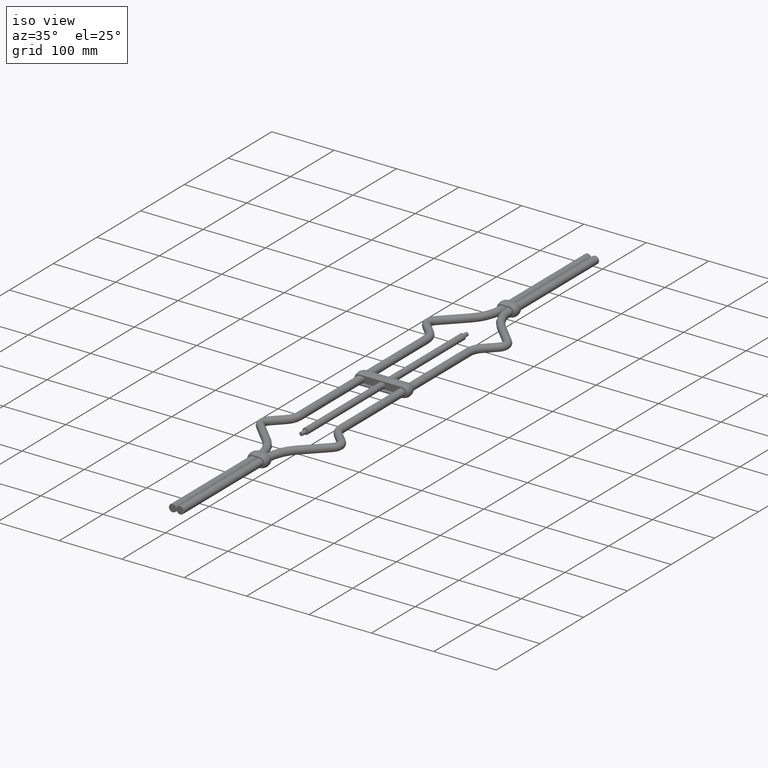
[diagram: clean part render]
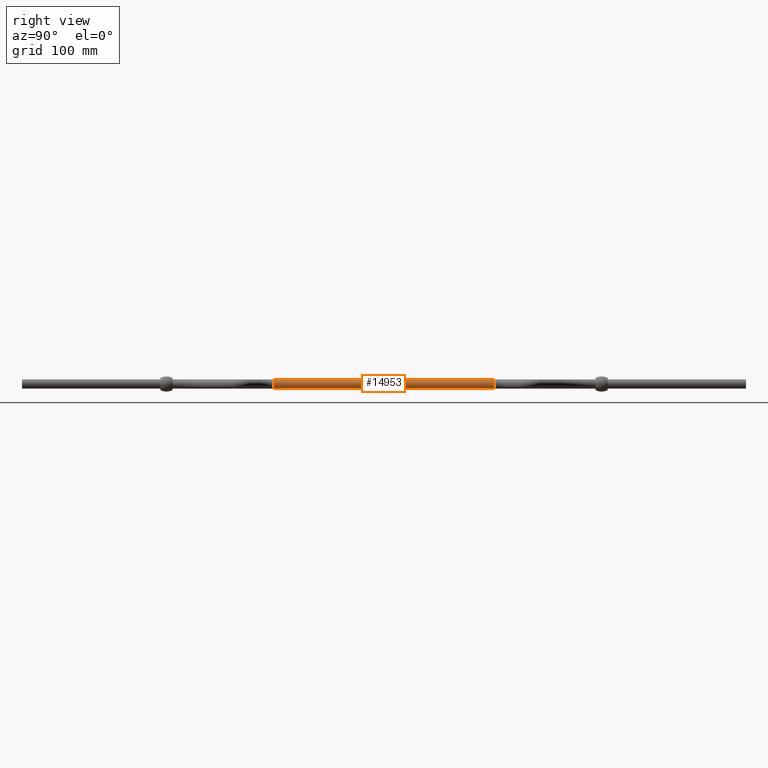
[diagram: tour spotlight — one face highlighted and labeled with its STEP entity id]
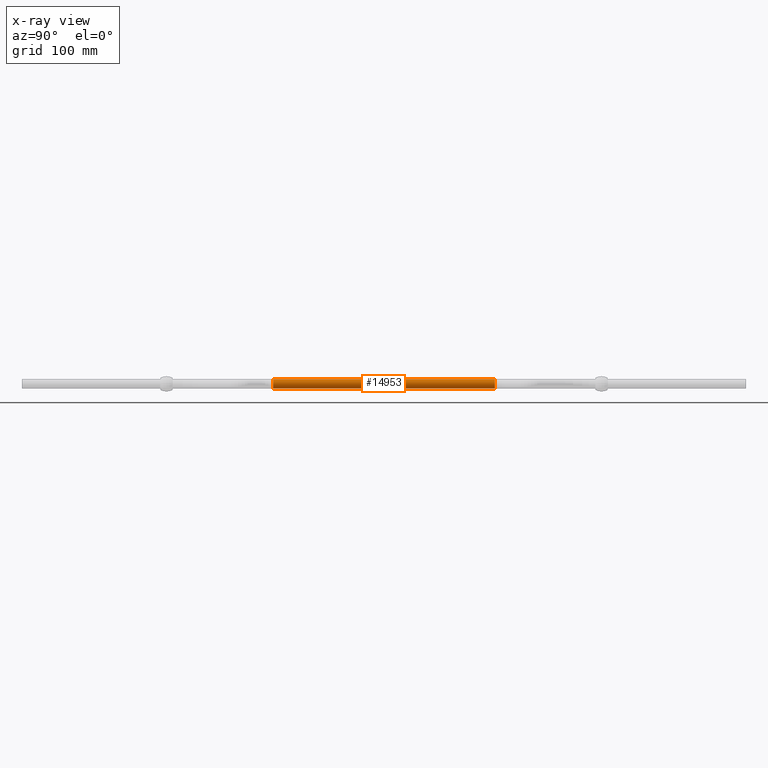
[diagram: x-ray of the same camera — body ghosted, this tour face saturated]
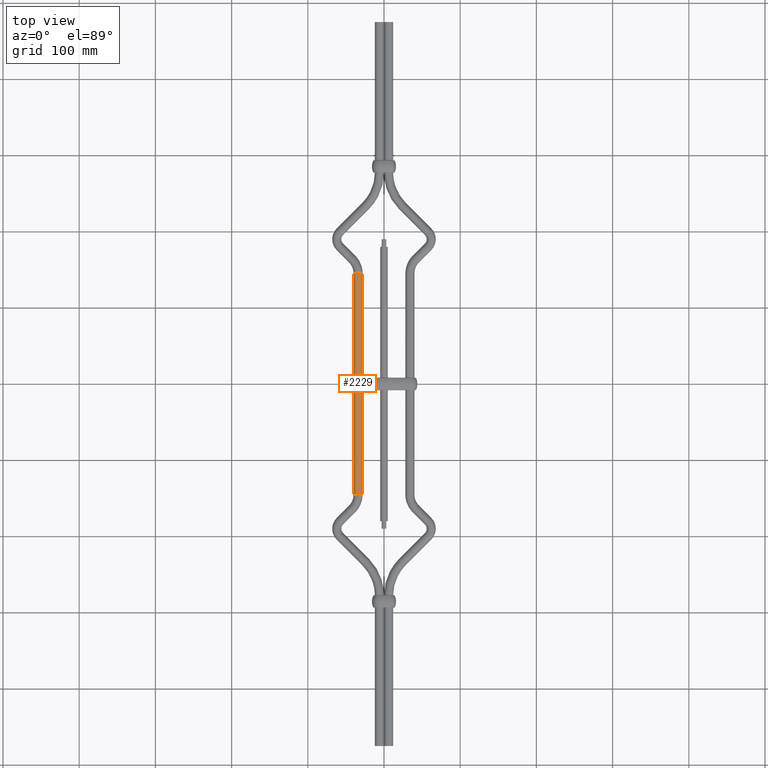
[diagram: tour spotlight — one face highlighted and labeled with its STEP entity id]
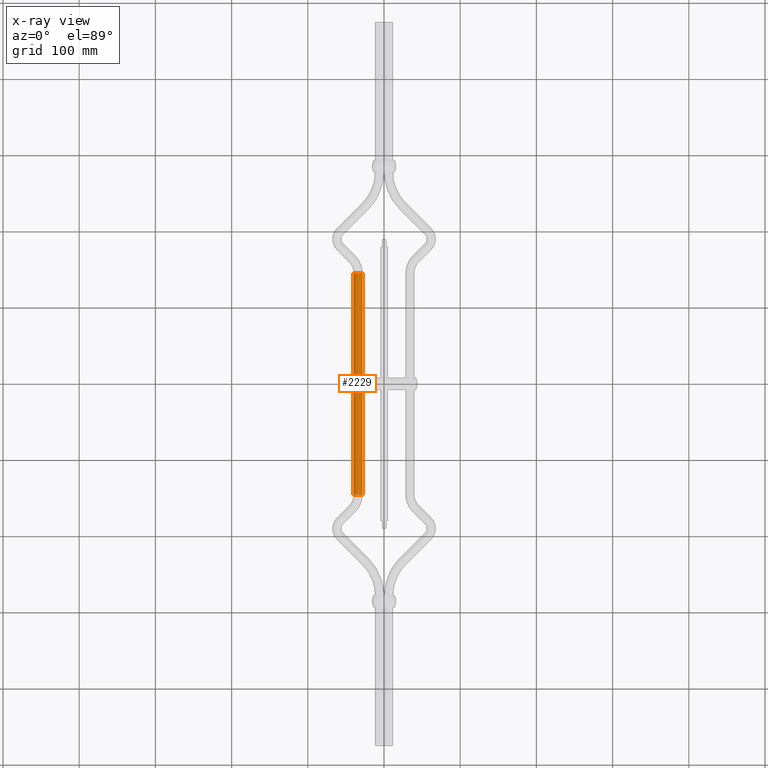
[diagram: x-ray of the same camera — body ghosted, this tour face saturated]
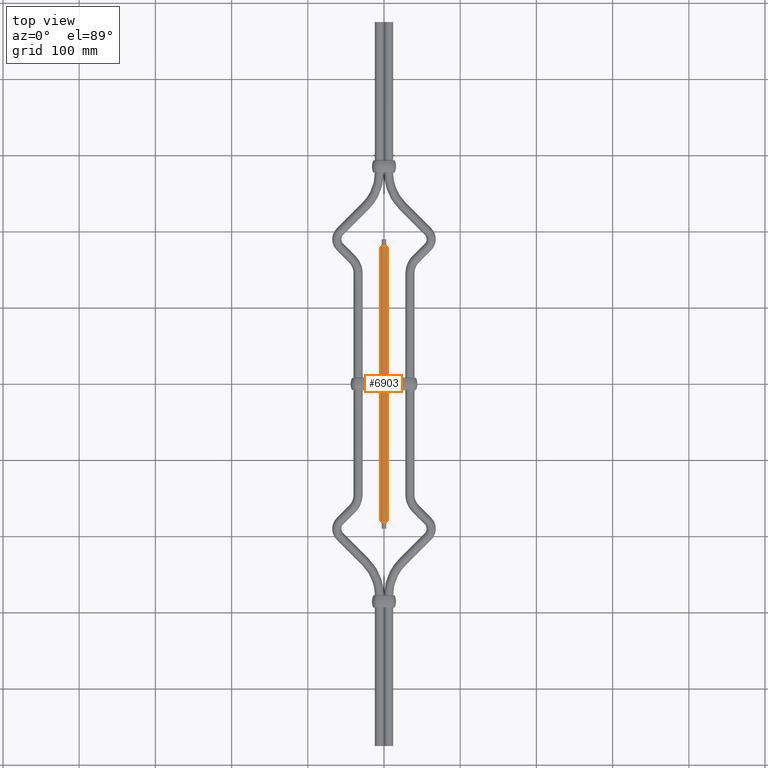
[diagram: tour spotlight — one face highlighted and labeled with its STEP entity id]
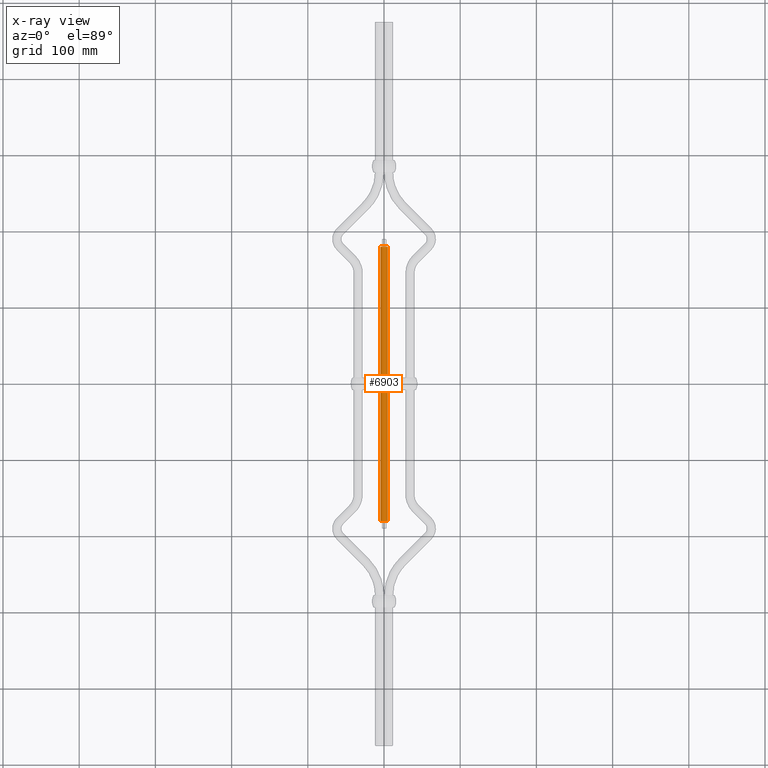
[diagram: x-ray of the same camera — body ghosted, this tour face saturated]
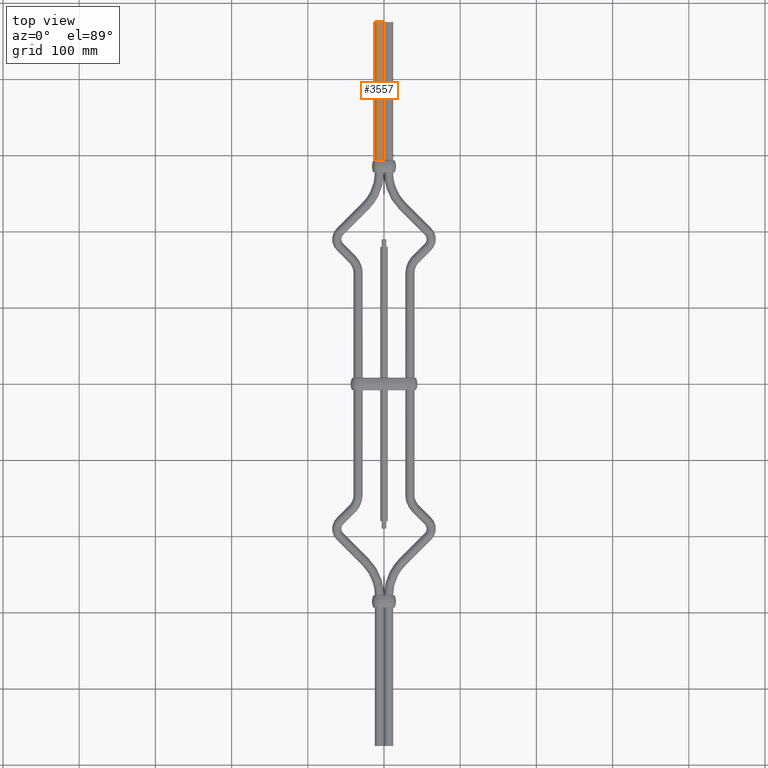
[diagram: tour spotlight — one face highlighted and labeled with its STEP entity id]
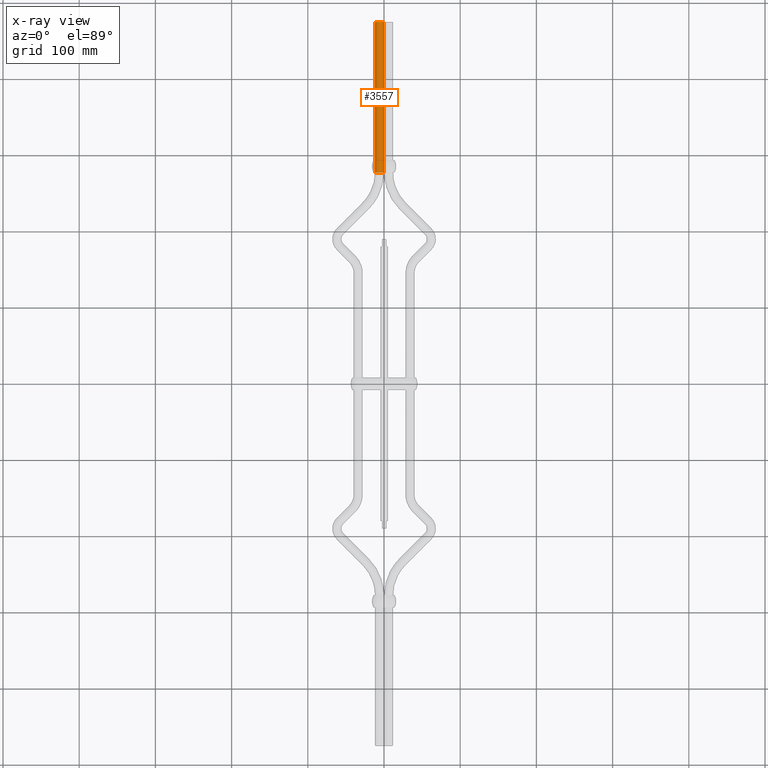
[diagram: x-ray of the same camera — body ghosted, this tour face saturated]
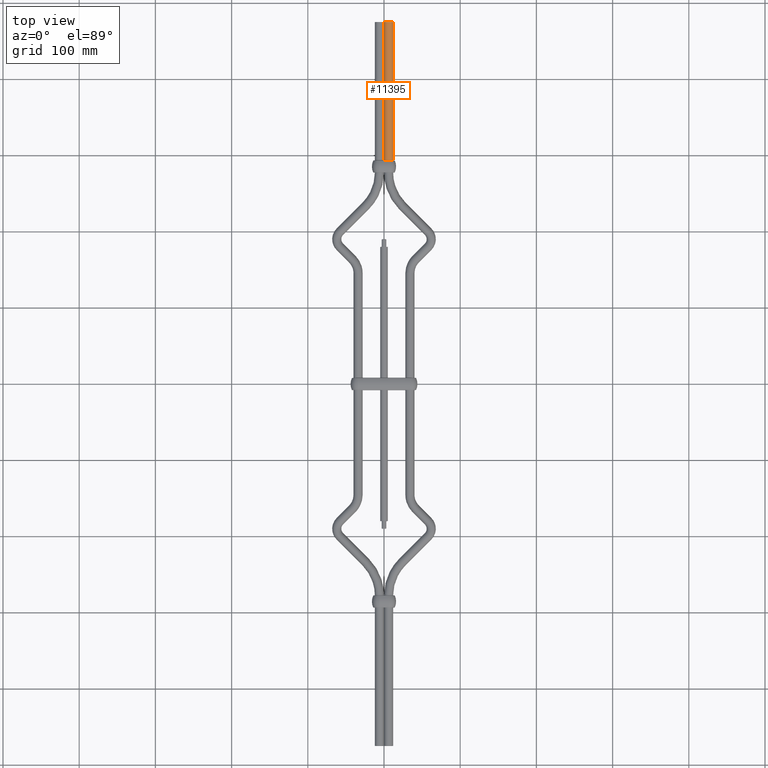
[diagram: tour spotlight — one face highlighted and labeled with its STEP entity id]
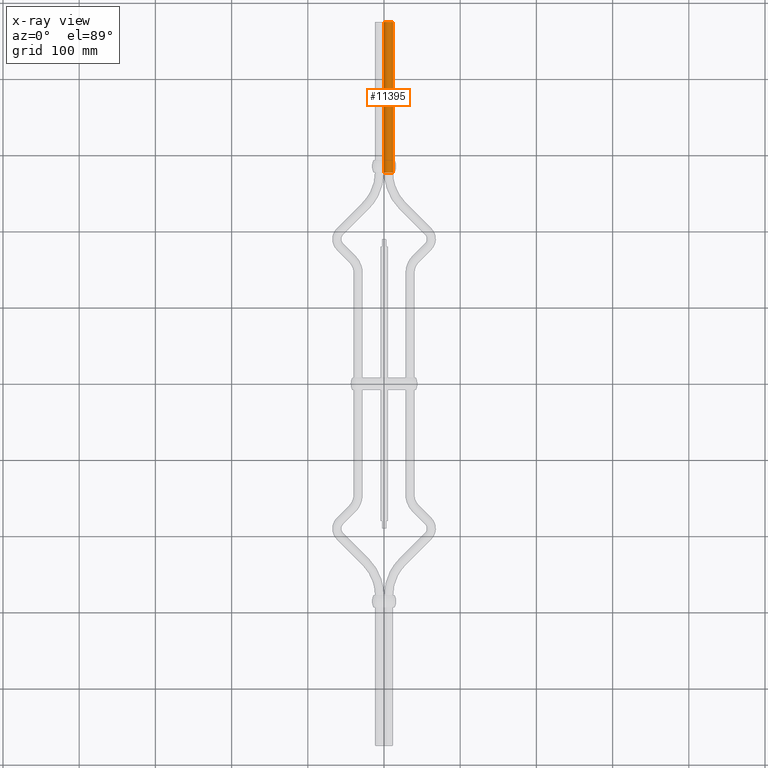
[diagram: x-ray of the same camera — body ghosted, this tour face saturated]
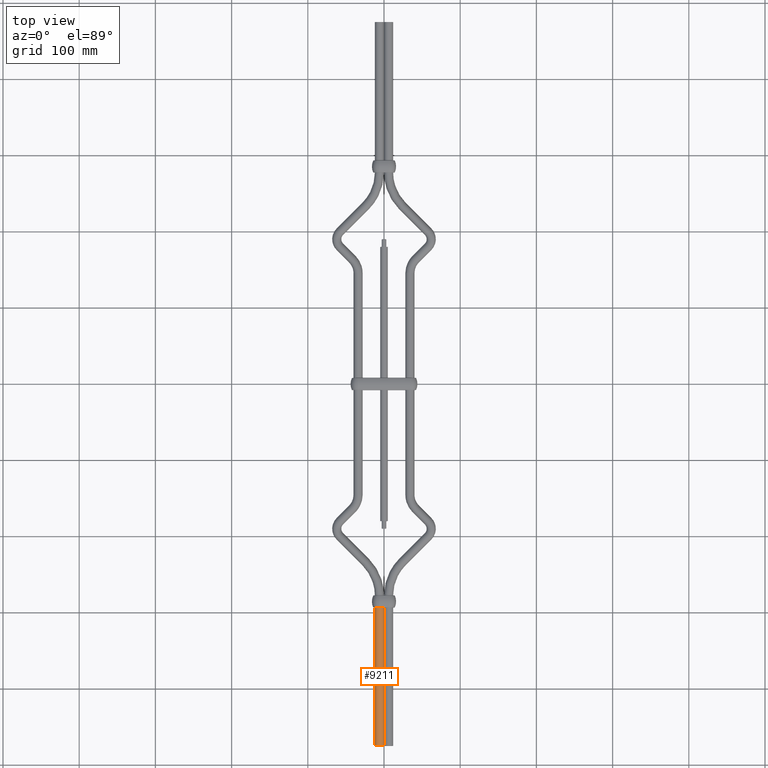
[diagram: tour spotlight — one face highlighted and labeled with its STEP entity id]
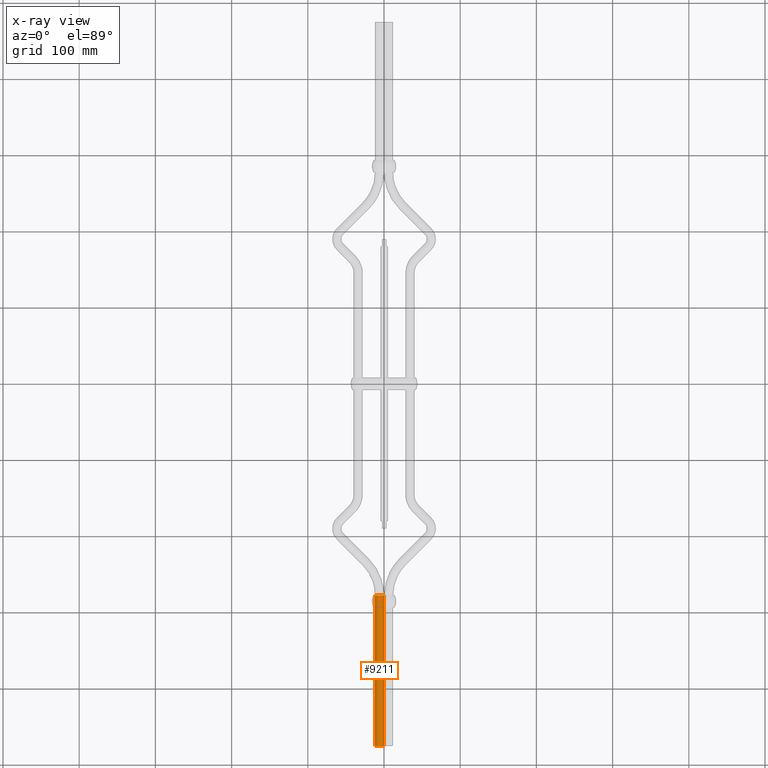
[diagram: x-ray of the same camera — body ghosted, this tour face saturated]
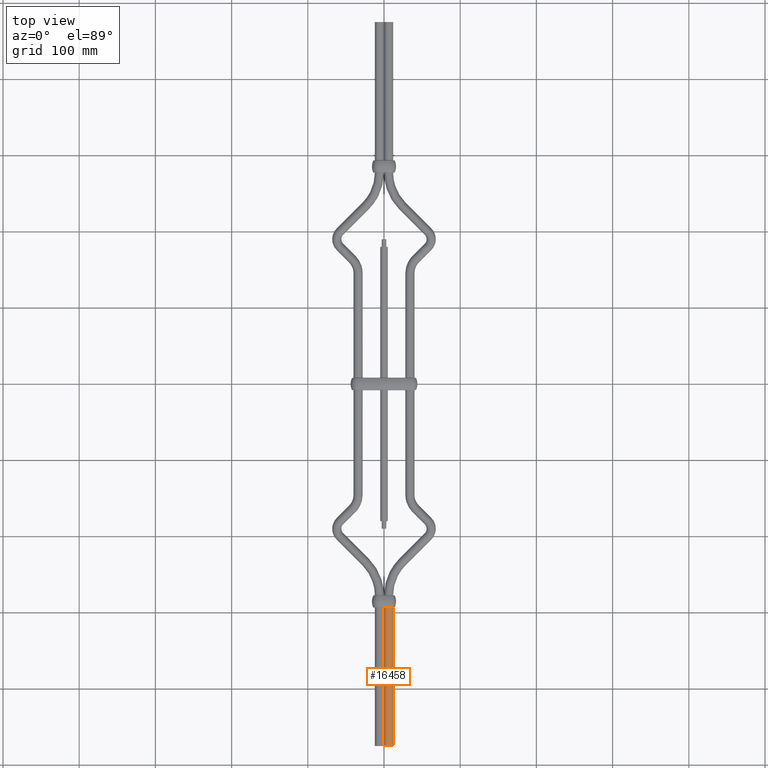
[diagram: tour spotlight — one face highlighted and labeled with its STEP entity id]
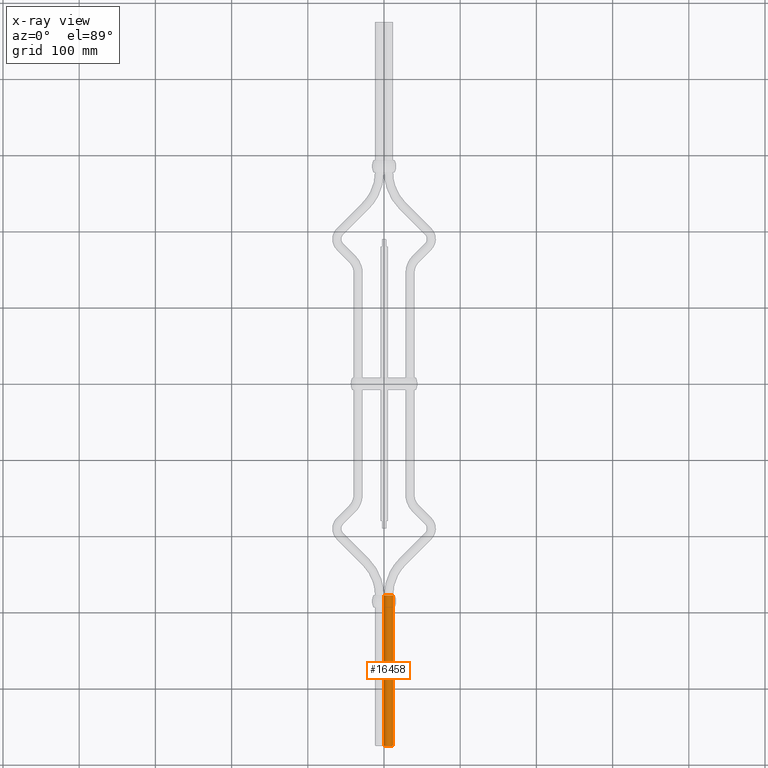
[diagram: x-ray of the same camera — body ghosted, this tour face saturated]
A machine part: a face-by-face anatomy tour. The part has 387 B-rep faces; the first image is the clean iso view, then the 7 largest visible faces are spotlighted one at a time (largest first), each with its STEP entity span.

Face 1 — right view, entity #14953. An x-ray twin of the same camera follows (body ghosted, this face saturated) — the face is partly hidden behind the body. In plain terms, the highlighted cylindrical surface (bore or boss wall) has radius 6 mm, axis along (0, 1, 0).
Definition (entity closure, byte-faithful):
#597 = VERTEX_POINT ( 'NONE', #9093 ) ;
#1064 = VERTEX_POINT ( 'NONE', #14320 ) ;
#1404 = AXIS2_PLACEMENT_3D ( 'NONE', #8619, #7284, #13607 ) ;
#1443 = CIRCLE ( 'NONE', #9463, 5.999999999999987566 ) ;
#2043 = VECTOR ( 'NONE', #15611, 1000.000000000000000 ) ;
#2161 = AXIS2_PLACEMENT_3D ( 'NONE', #7529, #6183, #4863 ) ;
#2219 = EDGE_LOOP ( 'NONE', ( #4838, #2811, #15328, #15410 ) ) ;
#2248 = CYLINDRICAL_SURFACE ( 'NONE', #1404, 5.999999999999987566 ) ;
#2266 = CARTESIAN_POINT ( 'NONE',  ( 34.00000000000000000, -5.000000000000000000, 0.000000000000000000 ) ) ;
#2346 = CARTESIAN_POINT ( 'NONE',  ( 30.68337520964461262, 1.582443574048710790E-16, -4.999999999999992895 ) ) ;
#2482 = CIRCLE ( 'NONE', #9016, 5.999999999999987566 ) ;
#2567 = LINE ( 'NONE', #2346, #14270 ) ;
#2641 = VERTEX_POINT ( 'NONE', #15475 ) ;
#2811 = ORIENTED_EDGE ( 'NONE', *, *, #15154, .F. ) ;
#3826 = FACE_OUTER_BOUND ( 'NONE', #9884, .T. ) ;
#4451 = CARTESIAN_POINT ( 'NONE',  ( 34.00000000000000000, 5.000000000000000000, 0.000000000000000000 ) ) ;
#4838 = ORIENTED_EDGE ( 'NONE', *, *, #5020, .F. ) ;
#4863 = DIRECTION ( 'NONE',  ( 0.000000000000000000, 0.000000000000000000, 1.000000000000000000 ) ) ;
#5020 = EDGE_CURVE ( 'NONE', #11113, #6650, #2482, .T. ) ;
#5027 = FACE_BOUND ( 'NONE', #2219, .T. ) ;
#5208 = FACE_OUTER_BOUND ( 'NONE', #6741, .T. ) ;
#5481 = ORIENTED_EDGE ( 'NONE', *, *, #13057, .F. ) ;
#5922 = EDGE_CURVE ( 'NONE', #597, #597, #8024, .T. ) ;
#6145 = EDGE_CURVE ( 'NONE', #1064, #2641, #1443, .T. ) ;
#6183 = DIRECTION ( 'NONE',  ( 0.000000000000000000, 1.000000000000000000, 0.000000000000000000 ) ) ;
#6319 = CARTESIAN_POINT ( 'NONE',  ( 34.00000000000000711, 145.4314575050761960, 5.999999999999987566 ) ) ;
#6650 = VERTEX_POINT ( 'NONE', #10862 ) ;
#6741 = EDGE_LOOP ( 'NONE', ( #11286 ) ) ;
#7284 = DIRECTION ( 'NONE',  ( 4.771246897298702434E-17, 1.000000000000000000, 0.000000000000000000 ) ) ;
#7323 = DIRECTION ( 'NONE',  ( -0.000000000000000000, -1.000000000000000000, 0.000000000000000000 ) ) ;
#7527 = DIRECTION ( 'NONE',  ( 0.000000000000000000, 0.000000000000000000, 1.000000000000000000 ) ) ;
#7529 = CARTESIAN_POINT ( 'NONE',  ( 34.00000000000000711, 145.4314575050761960, 0.000000000000000000 ) ) ;
#8024 = CIRCLE ( 'NONE', #10522, 5.999999999999987566 ) ;
#8619 = CARTESIAN_POINT ( 'NONE',  ( 34.00000000000000000, 0.000000000000000000, 0.000000000000000000 ) ) ;
#9016 = AXIS2_PLACEMENT_3D ( 'NONE', #4451, #13390, #13273 ) ;
#9093 = CARTESIAN_POINT ( 'NONE',  ( 34.00000000000000711, -145.4314575050761960, 5.999999999999987566 ) ) ;
#9382 = LINE ( 'NONE', #14568, #2043 ) ;
#9463 = AXIS2_PLACEMENT_3D ( 'NONE', #2266, #7323, #11037 ) ;
#9745 = CARTESIAN_POINT ( 'NONE',  ( 34.00000000000000711, -145.4314575050761960, 0.000000000000000000 ) ) ;
#9750 = VERTEX_POINT ( 'NONE', #6319 ) ;
#9884 = EDGE_LOOP ( 'NONE', ( #5481 ) ) ;
#10522 = AXIS2_PLACEMENT_3D ( 'NONE', #9745, #16337, #7527 ) ;
#10862 = CARTESIAN_POINT ( 'NONE',  ( 30.68337520964461262, 5.000000000000000000, -4.999999999999992895 ) ) ;
#11037 = DIRECTION ( 'NONE',  ( 0.000000000000000000, 0.000000000000000000, 1.000000000000000000 ) ) ;
#11113 = VERTEX_POINT ( 'NONE', #13282 ) ;
#11251 = EDGE_CURVE ( 'NONE', #6650, #2641, #2567, .T. ) ;
#11286 = ORIENTED_EDGE ( 'NONE', *, *, #5922, .T. ) ;
#13057 = EDGE_CURVE ( 'NONE', #9750, #9750, #14870, .T. ) ;
#13273 = DIRECTION ( 'NONE',  ( 0.000000000000000000, 0.000000000000000000, 1.000000000000000000 ) ) ;
#13282 = CARTESIAN_POINT ( 'NONE',  ( 30.68337520964461973, 5.000000000000000000, 4.999999999999996447 ) ) ;
#13390 = DIRECTION ( 'NONE',  ( -0.000000000000000000, -1.000000000000000000, 0.000000000000000000 ) ) ;
#13607 = DIRECTION ( 'NONE',  ( -1.000000000000000000, 4.771246897298702434E-17, 0.000000000000000000 ) ) ;
#13729 = DIRECTION ( 'NONE',  ( -4.771246897298702434E-17, -1.000000000000000000, -0.000000000000000000 ) ) ;
#14270 = VECTOR ( 'NONE', #13729, 1000.000000000000000 ) ;
#14320 = CARTESIAN_POINT ( 'NONE',  ( 30.68337520964461973, -5.000000000000000000, 4.999999999999996447 ) ) ;
#14568 = CARTESIAN_POINT ( 'NONE',  ( 30.68337520964461973, 1.582443574048708325E-16, 4.999999999999996447 ) ) ;
#14870 = CIRCLE ( 'NONE', #2161, 5.999999999999987566 ) ;
#14953 = ADVANCED_FACE ( 'NONE', ( #5027, #3826, #5208 ), #2248, .T. ) ;
#15154 = EDGE_CURVE ( 'NONE', #1064, #11113, #9382, .T. ) ;
#15328 = ORIENTED_EDGE ( 'NONE', *, *, #6145, .T. ) ;
#15410 = ORIENTED_EDGE ( 'NONE', *, *, #11251, .F. ) ;
#15475 = CARTESIAN_POINT ( 'NONE',  ( 30.68337520964461262, -5.000000000000000000, -4.999999999999992895 ) ) ;
#15611 = DIRECTION ( 'NONE',  ( 4.771246897298702434E-17, 1.000000000000000000, 0.000000000000000000 ) ) ;
#16337 = DIRECTION ( 'NONE',  ( -0.000000000000000000, 1.000000000000000000, -0.000000000000000000 ) ) ;

Face 2 — top view, entity #2229. An x-ray twin of the same camera follows (body ghosted, this face saturated) — the face is partly hidden behind the body. In plain terms, the highlighted cylindrical surface (bore or boss wall) has radius 6 mm, axis along (-0, 1, 0).
Definition (entity closure, byte-faithful):
#156 = CARTESIAN_POINT ( 'NONE',  ( -34.00000000000000711, -145.4314575050761960, 5.999999999999987566 ) ) ;
#221 = AXIS2_PLACEMENT_3D ( 'NONE', #12310, #2204, #8498 ) ;
#248 = ORIENTED_EDGE ( 'NONE', *, *, #9123, .F. ) ;
#674 = EDGE_LOOP ( 'NONE', ( #3602 ) ) ;
#696 = VERTEX_POINT ( 'NONE', #2743 ) ;
#1001 = CARTESIAN_POINT ( 'NONE',  ( -30.68337520964461973, 5.000000000000000000, -4.999999999999996447 ) ) ;
#1031 = CARTESIAN_POINT ( 'NONE',  ( -34.00000000000000711, -145.4314575050761960, 0.000000000000000000 ) ) ;
#1215 = VERTEX_POINT ( 'NONE', #9457 ) ;
#1314 = CARTESIAN_POINT ( 'NONE',  ( -34.00000000000000711, 145.4314575050761960, 5.999999999999987566 ) ) ;
#1901 = DIRECTION ( 'NONE',  ( -0.000000000000000000, -1.000000000000000000, 0.000000000000000000 ) ) ;
#1928 = EDGE_LOOP ( 'NONE', ( #11434 ) ) ;
#1945 = LINE ( 'NONE', #3939, #11453 ) ;
#1990 = EDGE_CURVE ( 'NONE', #5578, #5578, #15896, .T. ) ;
#2204 = DIRECTION ( 'NONE',  ( -0.000000000000000000, -1.000000000000000000, -0.000000000000000000 ) ) ;
#2229 = ADVANCED_FACE ( 'NONE', ( #6415, #12962, #15046 ), #13467, .T. ) ;
#2529 = EDGE_CURVE ( 'NONE', #1215, #12999, #1945, .T. ) ;
#2743 = CARTESIAN_POINT ( 'NONE',  ( -30.68337520964461973, -5.000000000000000000, -4.999999999999996447 ) ) ;
#2985 = CIRCLE ( 'NONE', #5210, 5.999999999999987566 ) ;
#3051 = ORIENTED_EDGE ( 'NONE', *, *, #2529, .F. ) ;
#3195 = CARTESIAN_POINT ( 'NONE',  ( -34.00000000000000000, 0.000000000000000000, 0.000000000000000000 ) ) ;
#3602 = ORIENTED_EDGE ( 'NONE', *, *, #1990, .T. ) ;
#3837 = DIRECTION ( 'NONE',  ( 4.771246897298702434E-17, -1.000000000000000000, -0.000000000000000000 ) ) ;
#3911 = VERTEX_POINT ( 'NONE', #1001 ) ;
#3939 = CARTESIAN_POINT ( 'NONE',  ( -30.68337520964462328, 1.582443574048705860E-16, 5.000000000000000000 ) ) ;
#4378 = CIRCLE ( 'NONE', #10973, 5.999999999999987566 ) ;
#5210 = AXIS2_PLACEMENT_3D ( 'NONE', #9511, #1901, #10843 ) ;
#5578 = VERTEX_POINT ( 'NONE', #1314 ) ;
#6415 = FACE_BOUND ( 'NONE', #7944, .T. ) ;
#6864 = CARTESIAN_POINT ( 'NONE',  ( -30.68337520964462328, -5.000000000000000000, 5.000000000000000000 ) ) ;
#7944 = EDGE_LOOP ( 'NONE', ( #248, #12702, #12218, #3051 ) ) ;
#8498 = DIRECTION ( 'NONE',  ( 0.000000000000000000, 0.000000000000000000, 1.000000000000000000 ) ) ;
#8712 = DIRECTION ( 'NONE',  ( -0.000000000000000000, -1.000000000000000000, -0.000000000000000000 ) ) ;
#9123 = EDGE_CURVE ( 'NONE', #3911, #1215, #2985, .T. ) ;
#9457 = CARTESIAN_POINT ( 'NONE',  ( -30.68337520964462328, 5.000000000000000000, 5.000000000000000000 ) ) ;
#9511 = CARTESIAN_POINT ( 'NONE',  ( -34.00000000000000000, 5.000000000000000000, 0.000000000000000000 ) ) ;
#9520 = LINE ( 'NONE', #15162, #15260 ) ;
#9773 = EDGE_CURVE ( 'NONE', #11129, #11129, #4378, .T. ) ;
#9926 = DIRECTION ( 'NONE',  ( 0.000000000000000000, 0.000000000000000000, 1.000000000000000000 ) ) ;
#10627 = DIRECTION ( 'NONE',  ( 1.000000000000000000, 4.771246897298702434E-17, 0.000000000000000000 ) ) ;
#10843 = DIRECTION ( 'NONE',  ( 1.156482317317873697E-15, 0.000000000000000000, 1.000000000000000000 ) ) ;
#10973 = AXIS2_PLACEMENT_3D ( 'NONE', #1031, #8712, #9926 ) ;
#11129 = VERTEX_POINT ( 'NONE', #156 ) ;
#11224 = DIRECTION ( 'NONE',  ( -0.000000000000000000, -1.000000000000000000, 0.000000000000000000 ) ) ;
#11434 = ORIENTED_EDGE ( 'NONE', *, *, #9773, .F. ) ;
#11453 = VECTOR ( 'NONE', #3837, 1000.000000000000000 ) ;
#11597 = AXIS2_PLACEMENT_3D ( 'NONE', #3195, #15602, #10627 ) ;
#11623 = AXIS2_PLACEMENT_3D ( 'NONE', #12335, #11224, #13728 ) ;
#11857 = EDGE_CURVE ( 'NONE', #696, #3911, #9520, .T. ) ;
#12218 = ORIENTED_EDGE ( 'NONE', *, *, #15779, .T. ) ;
#12310 = CARTESIAN_POINT ( 'NONE',  ( -34.00000000000000711, 145.4314575050761960, 0.000000000000000000 ) ) ;
#12335 = CARTESIAN_POINT ( 'NONE',  ( -34.00000000000000000, -5.000000000000000000, 0.000000000000000000 ) ) ;
#12621 = DIRECTION ( 'NONE',  ( -4.771246897298702434E-17, 1.000000000000000000, 0.000000000000000000 ) ) ;
#12702 = ORIENTED_EDGE ( 'NONE', *, *, #11857, .F. ) ;
#12962 = FACE_OUTER_BOUND ( 'NONE', #674, .T. ) ;
#12999 = VERTEX_POINT ( 'NONE', #6864 ) ;
#13467 = CYLINDRICAL_SURFACE ( 'NONE', #11597, 5.999999999999987566 ) ;
#13728 = DIRECTION ( 'NONE',  ( 1.156482317317873697E-15, 0.000000000000000000, 1.000000000000000000 ) ) ;
#14315 = CIRCLE ( 'NONE', #11623, 5.999999999999987566 ) ;
#15046 = FACE_OUTER_BOUND ( 'NONE', #1928, .T. ) ;
#15162 = CARTESIAN_POINT ( 'NONE',  ( -30.68337520964461973, 1.582443574048708325E-16, -4.999999999999996447 ) ) ;
#15260 = VECTOR ( 'NONE', #12621, 1000.000000000000000 ) ;
#15602 = DIRECTION ( 'NONE',  ( -4.771246897298702434E-17, 1.000000000000000000, 0.000000000000000000 ) ) ;
#15779 = EDGE_CURVE ( 'NONE', #696, #12999, #14315, .T. ) ;
#15896 = CIRCLE ( 'NONE', #221, 5.999999999999987566 ) ;

Face 3 — top view, entity #6903. An x-ray twin of the same camera follows (body ghosted, this face saturated) — the face is partly hidden behind the body. In plain terms, the highlighted cylindrical surface (bore or boss wall) has radius 5 mm, axis along (-0, -1, -0).
Definition (entity closure, byte-faithful):
#120 = DIRECTION ( 'NONE',  ( -0.000000000000000000, -1.000000000000000000, -0.000000000000000000 ) ) ;
#230 = CIRCLE ( 'NONE', #1578, 5.000000000000000000 ) ;
#1364 = VERTEX_POINT ( 'NONE', #11579 ) ;
#1578 = AXIS2_PLACEMENT_3D ( 'NONE', #5933, #8508, #7232 ) ;
#2301 = EDGE_LOOP ( 'NONE', ( #15027 ) ) ;
#3963 = VERTEX_POINT ( 'NONE', #6476 ) ;
#4581 = DIRECTION ( 'NONE',  ( 0.000000000000000000, 1.000000000000000000, 0.000000000000000000 ) ) ;
#4739 = DIRECTION ( 'NONE',  ( 0.000000000000000000, 0.000000000000000000, 1.000000000000000000 ) ) ;
#5160 = DIRECTION ( 'NONE',  ( 0.000000000000000000, 0.000000000000000000, -1.000000000000000000 ) ) ;
#5933 = CARTESIAN_POINT ( 'NONE',  ( 0.000000000000000000, -180.0000000000000000, 0.000000000000000000 ) ) ;
#6476 = CARTESIAN_POINT ( 'NONE',  ( 0.000000000000000000, -180.0000000000000000, 5.000000000000000000 ) ) ;
#6903 = ADVANCED_FACE ( 'NONE', ( #8212, #11745 ), #7802, .T. ) ;
#7232 = DIRECTION ( 'NONE',  ( 0.000000000000000000, 0.000000000000000000, 1.000000000000000000 ) ) ;
#7518 = EDGE_CURVE ( 'NONE', #3963, #3963, #230, .T. ) ;
#7802 = CYLINDRICAL_SURFACE ( 'NONE', #10849, 5.000000000000000000 ) ;
#8212 = FACE_OUTER_BOUND ( 'NONE', #9388, .T. ) ;
#8508 = DIRECTION ( 'NONE',  ( 0.000000000000000000, 1.000000000000000000, 0.000000000000000000 ) ) ;
#9388 = EDGE_LOOP ( 'NONE', ( #13474 ) ) ;
#9742 = CIRCLE ( 'NONE', #14249, 5.000000000000000000 ) ;
#10612 = EDGE_CURVE ( 'NONE', #1364, #1364, #9742, .T. ) ;
#10683 = CARTESIAN_POINT ( 'NONE',  ( 0.000000000000000000, 180.0000000000000000, 0.000000000000000000 ) ) ;
#10849 = AXIS2_PLACEMENT_3D ( 'NONE', #12831, #120, #5160 ) ;
#11579 = CARTESIAN_POINT ( 'NONE',  ( 0.000000000000000000, 180.0000000000000000, 5.000000000000000000 ) ) ;
#11745 = FACE_OUTER_BOUND ( 'NONE', #2301, .T. ) ;
#12831 = CARTESIAN_POINT ( 'NONE',  ( 0.000000000000000000, 180.0000000000000000, 0.000000000000000000 ) ) ;
#13474 = ORIENTED_EDGE ( 'NONE', *, *, #10612, .F. ) ;
#14249 = AXIS2_PLACEMENT_3D ( 'NONE', #10683, #4581, #4739 ) ;
#15027 = ORIENTED_EDGE ( 'NONE', *, *, #7518, .T. ) ;

Face 4 — top view, entity #3557. An x-ray twin of the same camera follows (body ghosted, this face saturated) — the face is partly hidden behind the body. In plain terms, the highlighted cylindrical surface (bore or boss wall) has radius 6 mm, axis along (0, 1, 0).
Definition (entity closure, byte-faithful):
#252 = CARTESIAN_POINT ( 'NONE',  ( -5.999999999999998224, 277.5000000000000000, 0.000000000000000000 ) ) ;
#1470 = CARTESIAN_POINT ( 'NONE',  ( -6.000000000000001776, 475.0000000000000000, 5.999999999999987566 ) ) ;
#2123 = CYLINDRICAL_SURFACE ( 'NONE', #3163, 5.999999999999987566 ) ;
#2745 = EDGE_CURVE ( 'NONE', #7379, #7379, #6694, .T. ) ;
#3163 = AXIS2_PLACEMENT_3D ( 'NONE', #6328, #10120, #12508 ) ;
#3509 = FACE_OUTER_BOUND ( 'NONE', #14651, .T. ) ;
#3557 = ADVANCED_FACE ( 'NONE', ( #3509, #14209 ), #2123, .T. ) ;
#3773 = VERTEX_POINT ( 'NONE', #10372 ) ;
#4512 = CARTESIAN_POINT ( 'NONE',  ( -6.000000000000001776, 475.0000000000000000, 0.000000000000000000 ) ) ;
#5679 = EDGE_LOOP ( 'NONE', ( #13204 ) ) ;
#6328 = CARTESIAN_POINT ( 'NONE',  ( -6.000000000000001776, 277.5000000000000000, 0.000000000000000000 ) ) ;
#6694 = CIRCLE ( 'NONE', #15624, 5.999999999999987566 ) ;
#7077 = DIRECTION ( 'NONE',  ( 0.000000000000000000, 0.000000000000000000, 1.000000000000000000 ) ) ;
#7379 = VERTEX_POINT ( 'NONE', #1470 ) ;
#7839 = ORIENTED_EDGE ( 'NONE', *, *, #2745, .T. ) ;
#8472 = AXIS2_PLACEMENT_3D ( 'NONE', #252, #14131, #9137 ) ;
#9137 = DIRECTION ( 'NONE',  ( 0.000000000000000000, 0.000000000000000000, 1.000000000000000000 ) ) ;
#10120 = DIRECTION ( 'NONE',  ( 0.000000000000000000, 1.000000000000000000, 0.000000000000000000 ) ) ;
#10372 = CARTESIAN_POINT ( 'NONE',  ( -5.999999999999998224, 277.5000000000000000, 5.999999999999987566 ) ) ;
#12508 = DIRECTION ( 'NONE',  ( 0.000000000000000000, 0.000000000000000000, 1.000000000000000000 ) ) ;
#13204 = ORIENTED_EDGE ( 'NONE', *, *, #14990, .F. ) ;
#14131 = DIRECTION ( 'NONE',  ( -0.000000000000000000, -1.000000000000000000, -0.000000000000000000 ) ) ;
#14209 = FACE_OUTER_BOUND ( 'NONE', #5679, .T. ) ;
#14425 = DIRECTION ( 'NONE',  ( -0.000000000000000000, -1.000000000000000000, -0.000000000000000000 ) ) ;
#14651 = EDGE_LOOP ( 'NONE', ( #7839 ) ) ;
#14945 = CIRCLE ( 'NONE', #8472, 5.999999999999987566 ) ;
#14990 = EDGE_CURVE ( 'NONE', #3773, #3773, #14945, .T. ) ;
#15624 = AXIS2_PLACEMENT_3D ( 'NONE', #4512, #14425, #7077 ) ;

Face 5 — top view, entity #11395. An x-ray twin of the same camera follows (body ghosted, this face saturated) — the face is partly hidden behind the body. In plain terms, the highlighted cylindrical surface (bore or boss wall) has radius 6 mm, axis along (0, 1, 0).
Definition (entity closure, byte-faithful):
#8 = VERTEX_POINT ( 'NONE', #2701 ) ;
#43 = ORIENTED_EDGE ( 'NONE', *, *, #7228, .T. ) ;
#107 = CARTESIAN_POINT ( 'NONE',  ( 5.999999999999998224, 277.5000000000000000, 0.000000000000000000 ) ) ;
#139 = CIRCLE ( 'NONE', #6717, 5.999999999999987566 ) ;
#308 = DIRECTION ( 'NONE',  ( 0.000000000000000000, 1.000000000000000000, 0.000000000000000000 ) ) ;
#1376 = AXIS2_PLACEMENT_3D ( 'NONE', #12711, #7873, #11644 ) ;
#2701 = CARTESIAN_POINT ( 'NONE',  ( 5.999999999999998224, 277.5000000000000000, 5.999999999999987566 ) ) ;
#2758 = FACE_OUTER_BOUND ( 'NONE', #8957, .T. ) ;
#3103 = EDGE_LOOP ( 'NONE', ( #15058 ) ) ;
#3159 = EDGE_CURVE ( 'NONE', #4390, #4390, #139, .T. ) ;
#4255 = CARTESIAN_POINT ( 'NONE',  ( 6.000000000000001776, 475.0000000000000000, 0.000000000000000000 ) ) ;
#4390 = VERTEX_POINT ( 'NONE', #11474 ) ;
#5585 = DIRECTION ( 'NONE',  ( 0.000000000000000000, 0.000000000000000000, 1.000000000000000000 ) ) ;
#6717 = AXIS2_PLACEMENT_3D ( 'NONE', #4255, #308, #5585 ) ;
#7228 = EDGE_CURVE ( 'NONE', #8, #8, #14950, .T. ) ;
#7873 = DIRECTION ( 'NONE',  ( 0.000000000000000000, 1.000000000000000000, 0.000000000000000000 ) ) ;
#7923 = CYLINDRICAL_SURFACE ( 'NONE', #1376, 5.999999999999987566 ) ;
#8957 = EDGE_LOOP ( 'NONE', ( #43 ) ) ;
#11306 = FACE_OUTER_BOUND ( 'NONE', #3103, .T. ) ;
#11395 = ADVANCED_FACE ( 'NONE', ( #11306, #2758 ), #7923, .T. ) ;
#11474 = CARTESIAN_POINT ( 'NONE',  ( 6.000000000000001776, 475.0000000000000000, 5.999999999999987566 ) ) ;
#11526 = DIRECTION ( 'NONE',  ( 0.000000000000000000, 0.000000000000000000, 1.000000000000000000 ) ) ;
#11644 = DIRECTION ( 'NONE',  ( 0.000000000000000000, 0.000000000000000000, 1.000000000000000000 ) ) ;
#12711 = CARTESIAN_POINT ( 'NONE',  ( 6.000000000000001776, 277.5000000000000000, 0.000000000000000000 ) ) ;
#12754 = AXIS2_PLACEMENT_3D ( 'NONE', #107, #12761, #11526 ) ;
#12761 = DIRECTION ( 'NONE',  ( 0.000000000000000000, 1.000000000000000000, 0.000000000000000000 ) ) ;
#14950 = CIRCLE ( 'NONE', #12754, 5.999999999999987566 ) ;
#15058 = ORIENTED_EDGE ( 'NONE', *, *, #3159, .F. ) ;

Face 6 — top view, entity #9211. An x-ray twin of the same camera follows (body ghosted, this face saturated) — the face is partly hidden behind the body. In plain terms, the highlighted cylindrical surface (bore or boss wall) has radius 6 mm, axis along (0, -1, 0).
Definition (entity closure, byte-faithful):
#529 = DIRECTION ( 'NONE',  ( -0.000000000000000000, -1.000000000000000000, -0.000000000000000000 ) ) ;
#2310 = EDGE_CURVE ( 'NONE', #5979, #5979, #5939, .T. ) ;
#2648 = EDGE_LOOP ( 'NONE', ( #5313 ) ) ;
#3154 = DIRECTION ( 'NONE',  ( 0.000000000000000000, 0.000000000000000000, 1.000000000000000000 ) ) ;
#3781 = FACE_OUTER_BOUND ( 'NONE', #2648, .T. ) ;
#3868 = CARTESIAN_POINT ( 'NONE',  ( -5.999999999999998224, -277.5000000000000000, 5.999999999999987566 ) ) ;
#4040 = AXIS2_PLACEMENT_3D ( 'NONE', #10785, #15637, #13041 ) ;
#5313 = ORIENTED_EDGE ( 'NONE', *, *, #2310, .F. ) ;
#5561 = VERTEX_POINT ( 'NONE', #3868 ) ;
#5791 = FACE_OUTER_BOUND ( 'NONE', #15904, .T. ) ;
#5939 = CIRCLE ( 'NONE', #15013, 5.999999999999987566 ) ;
#5979 = VERTEX_POINT ( 'NONE', #10318 ) ;
#5985 = CIRCLE ( 'NONE', #8434, 5.999999999999987566 ) ;
#6556 = ORIENTED_EDGE ( 'NONE', *, *, #9659, .T. ) ;
#6876 = CARTESIAN_POINT ( 'NONE',  ( -5.999999999999998224, -277.5000000000000000, 0.000000000000000000 ) ) ;
#8434 = AXIS2_PLACEMENT_3D ( 'NONE', #6876, #529, #3154 ) ;
#8482 = DIRECTION ( 'NONE',  ( 0.000000000000000000, 0.000000000000000000, 1.000000000000000000 ) ) ;
#8532 = DIRECTION ( 'NONE',  ( -0.000000000000000000, -1.000000000000000000, -0.000000000000000000 ) ) ;
#9211 = ADVANCED_FACE ( 'NONE', ( #3781, #5791 ), #16093, .T. ) ;
#9659 = EDGE_CURVE ( 'NONE', #5561, #5561, #5985, .T. ) ;
#10318 = CARTESIAN_POINT ( 'NONE',  ( -6.000000000000001776, -475.0000000000000000, 5.999999999999987566 ) ) ;
#10785 = CARTESIAN_POINT ( 'NONE',  ( -6.000000000000001776, -277.5000000000000000, 0.000000000000000000 ) ) ;
#13041 = DIRECTION ( 'NONE',  ( 0.000000000000000000, 0.000000000000000000, 1.000000000000000000 ) ) ;
#13635 = CARTESIAN_POINT ( 'NONE',  ( -6.000000000000001776, -475.0000000000000000, 0.000000000000000000 ) ) ;
#15013 = AXIS2_PLACEMENT_3D ( 'NONE', #13635, #8532, #8482 ) ;
#15637 = DIRECTION ( 'NONE',  ( 0.000000000000000000, -1.000000000000000000, 0.000000000000000000 ) ) ;
#15904 = EDGE_LOOP ( 'NONE', ( #6556 ) ) ;
#16093 = CYLINDRICAL_SURFACE ( 'NONE', #4040, 5.999999999999987566 ) ;

Face 7 — top view, entity #16458. An x-ray twin of the same camera follows (body ghosted, this face saturated) — the face is partly hidden behind the body. In plain terms, the highlighted cylindrical surface (bore or boss wall) has radius 6 mm, axis along (0, -1, 0).
Definition (entity closure, byte-faithful):
#197 = ORIENTED_EDGE ( 'NONE', *, *, #11645, .F. ) ;
#1012 = VERTEX_POINT ( 'NONE', #16469 ) ;
#1045 = DIRECTION ( 'NONE',  ( -0.000000000000000000, 1.000000000000000000, -0.000000000000000000 ) ) ;
#1667 = AXIS2_PLACEMENT_3D ( 'NONE', #2842, #9290, #11705 ) ;
#2842 = CARTESIAN_POINT ( 'NONE',  ( 6.000000000000001776, -277.5000000000000000, 0.000000000000000000 ) ) ;
#3676 = ORIENTED_EDGE ( 'NONE', *, *, #3870, .T. ) ;
#3870 = EDGE_CURVE ( 'NONE', #1012, #1012, #6466, .T. ) ;
#4629 = CARTESIAN_POINT ( 'NONE',  ( 6.000000000000001776, -475.0000000000000000, 0.000000000000000000 ) ) ;
#5930 = CARTESIAN_POINT ( 'NONE',  ( 5.999999999999998224, -277.5000000000000000, 0.000000000000000000 ) ) ;
#5982 = DIRECTION ( 'NONE',  ( 0.000000000000000000, 0.000000000000000000, 1.000000000000000000 ) ) ;
#6466 = CIRCLE ( 'NONE', #9213, 5.999999999999987566 ) ;
#7370 = AXIS2_PLACEMENT_3D ( 'NONE', #5930, #1045, #5982 ) ;
#7376 = EDGE_LOOP ( 'NONE', ( #3676 ) ) ;
#8514 = DIRECTION ( 'NONE',  ( -0.000000000000000000, 1.000000000000000000, -0.000000000000000000 ) ) ;
#8579 = FACE_OUTER_BOUND ( 'NONE', #7376, .T. ) ;
#9213 = AXIS2_PLACEMENT_3D ( 'NONE', #4629, #8514, #10950 ) ;
#9290 = DIRECTION ( 'NONE',  ( 0.000000000000000000, -1.000000000000000000, 0.000000000000000000 ) ) ;
#10950 = DIRECTION ( 'NONE',  ( 0.000000000000000000, 0.000000000000000000, 1.000000000000000000 ) ) ;
#11148 = CYLINDRICAL_SURFACE ( 'NONE', #1667, 5.999999999999987566 ) ;
#11521 = CARTESIAN_POINT ( 'NONE',  ( 5.999999999999998224, -277.5000000000000000, 5.999999999999987566 ) ) ;
#11645 = EDGE_CURVE ( 'NONE', #14093, #14093, #12694, .T. ) ;
#11705 = DIRECTION ( 'NONE',  ( 0.000000000000000000, 0.000000000000000000, 1.000000000000000000 ) ) ;
#12694 = CIRCLE ( 'NONE', #7370, 5.999999999999987566 ) ;
#12729 = FACE_OUTER_BOUND ( 'NONE', #14574, .T. ) ;
#14093 = VERTEX_POINT ( 'NONE', #11521 ) ;
#14574 = EDGE_LOOP ( 'NONE', ( #197 ) ) ;
#16458 = ADVANCED_FACE ( 'NONE', ( #8579, #12729 ), #11148, .T. ) ;
#16469 = CARTESIAN_POINT ( 'NONE',  ( 6.000000000000001776, -475.0000000000000000, 5.999999999999987566 ) ) ;